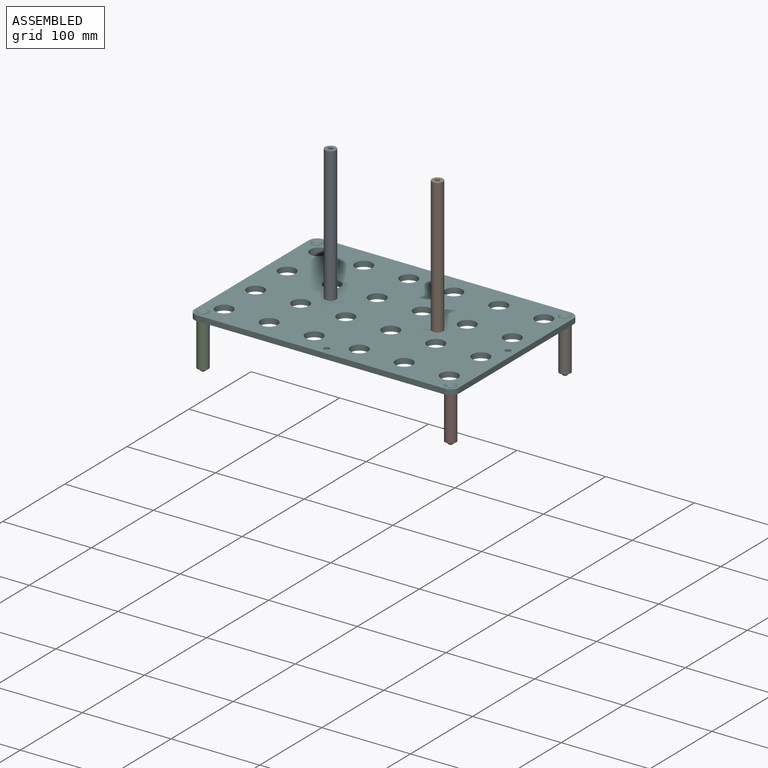
[diagram: assembled view]
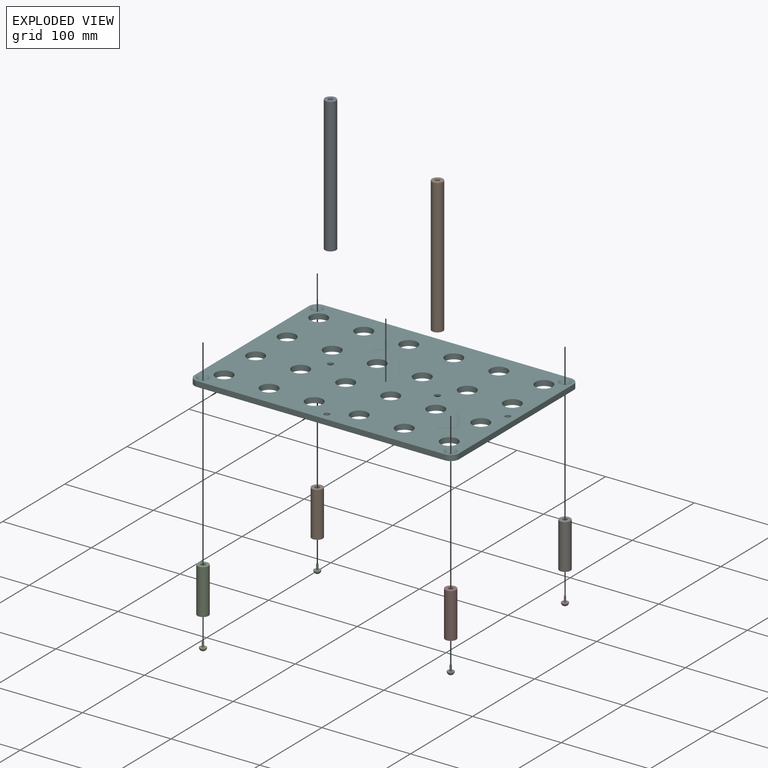
[diagram: exploded view]
GUIDED TOUR — MATED ASSEMBLY (Onshape document 4b744f1bc08e4623e3aabdac, AutoMate assembly 4b744f1bc08e4623e3aabdac_3c6e20d697e5b9ab1f1e1d80_13620ffebad03357eed60fb5_default)

This assembly has 11 components, labeled P0..P10 below (a component is one placed occurrence of a part; the same part can appear more than once), held together by 10 mates. A mate is a constraint between two components; its type names the relative motion it leaves free:
  FASTENED — locks the two components together rigidly (no relative motion).
Axis/direction vectors are unit vectors and 'through' points are millimeter coordinates, both in the assembly's world frame.

MATES
  1. FASTENED "Foot 2 to Base Plate": P5 <-> P9, direction (0.000, 0.000, -1.000) through (21.57, 147.60, -53.35) mm
  2. FASTENED "Foot 1 to Leg": P2 <-> P9, direction (0.000, 0.000, 1.000) through (21.57, 147.60, -104.15) mm
  3. FASTENED "Foot 3 to Base Plate": P7 <-> P5, direction (0.000, 0.000, 1.000) through (300.97, -36.55, -53.35) mm
  4. FASTENED "Foot 4 to Leg": P8 <-> P7, direction (0.000, 0.000, 1.000) through (300.97, -36.55, -104.15) mm
  5. FASTENED "Foot 2 to Leg": P10 <-> P4, direction (0.000, 0.000, -1.000) through (21.57, -36.55, -104.15) mm
  6. FASTENED "Foot 4 to Base Plate": P6 <-> P5, direction (0.000, 0.000, 1.000) through (300.97, 147.60, -53.35) mm
  7. FASTENED "Foot 1 to Base Plate": P10 <-> P5, direction (0.000, 0.000, 1.000) through (21.57, -36.55, -53.35) mm
  8. FASTENED "Foot 3 to Leg": P6 <-> P3, direction (0.000, 0.000, -1.000) through (300.97, 147.60, -104.15) mm
  9. FASTENED "Riser 1 to Base Plate": P0 <-> P5, direction (0.000, 0.000, -1.000) through (100.94, 55.52, -47.26) mm
  10. FASTENED "Riser 2 to Base Plate": P5 <-> P1, direction (0.000, 0.000, 1.000) through (221.59, 55.52, -47.26) mm

ASSEMBLY ORDER
  1. P1 — the base component [order verified]
  2. P0 [order verified]
  3. P5 [order verified]
  4. P9 [order verified]
  5. P6 [order verified]
  6. P7 [order verified]
  7. P10 [order verified]
  8. P3 [order verified]
  9. P2 [order verified]
  10. P8 [order verified]
  11. P4 [order verified]
Order-tag legend:
  [order verified] — this step's position reverses a verified removal order: the component was checked to insert without passing through the ones already placed.

Of the 11 components, 4 carry the full construction recipe — the FeatureScript program that regenerates the part's solid from scratch; the rest are supplied as boundary geometry only.
Each toured component is shown spotlighted twice — in the assembled view, then in the exploded view, where a leader line traces a displaced component back to its assembled socket (saturated green if recipe-attached, orange if geometry-only; every other component desaturated gray) — followed by its recipe or geometry summary and the mates that hold it.
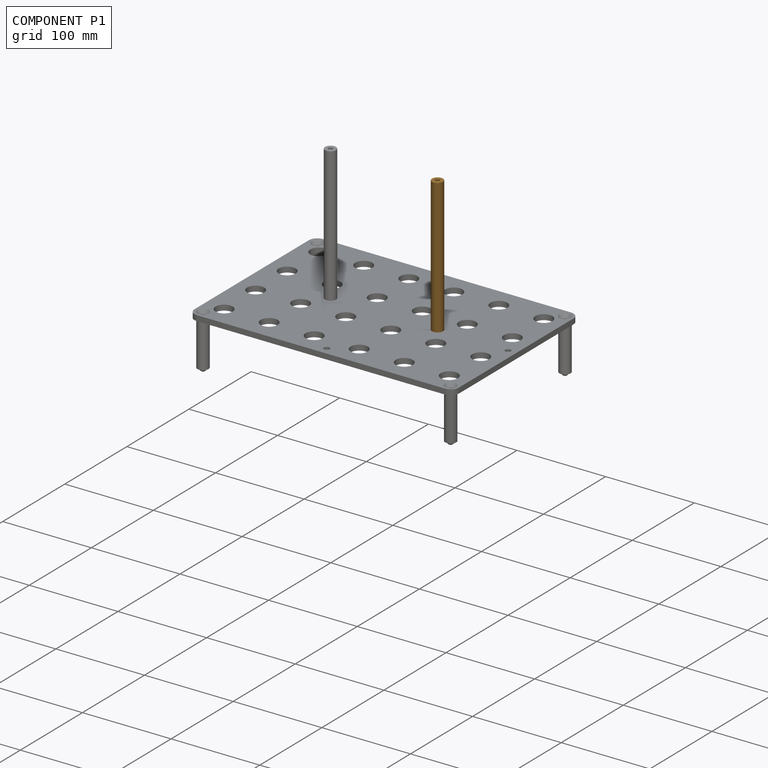
[diagram: component P1 — assembled]
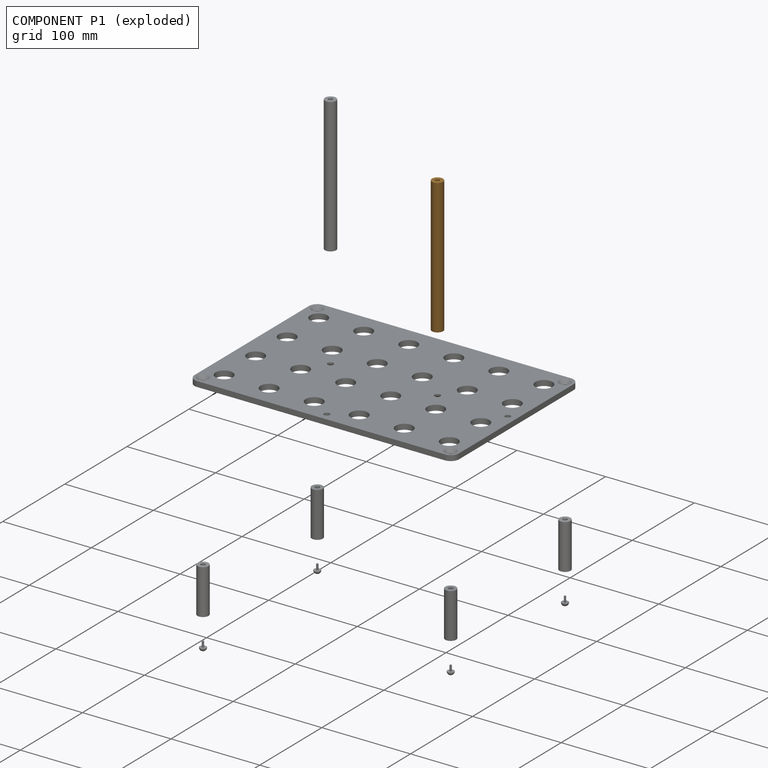
[diagram: component P1 — exploded]
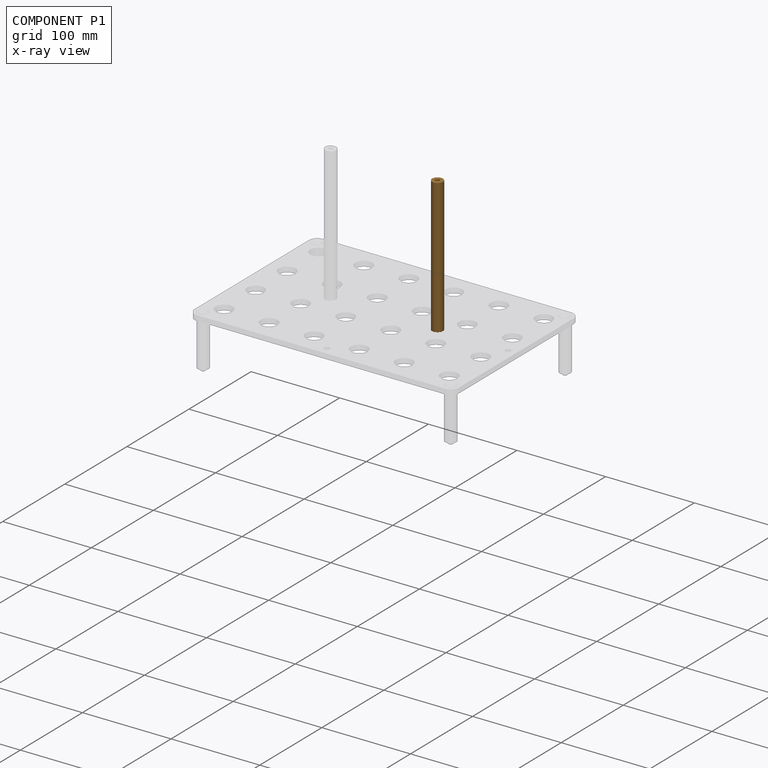
[diagram: component P1 — x-ray view]
COMPONENT P1 — geometry summary (no construction recipe available for this part):
  bounding box: 152.4 x 12.4 x 12.4 mm
  B-rep topology: 1 solid, 7 faces, 24 edges
  volume: 18000 mm^3 (76% of its bounding box)
  symmetry: 2-fold rotationally symmetric about the x axis; 2-fold rotationally symmetric about the y axis; revolution-symmetric about the z axis through its bounding-box center; mirror-symmetric across its x mid-plane, y mid-plane, z mid-plane
Held by: FASTENED mate "Riser 2 to Base Plate" to P5.
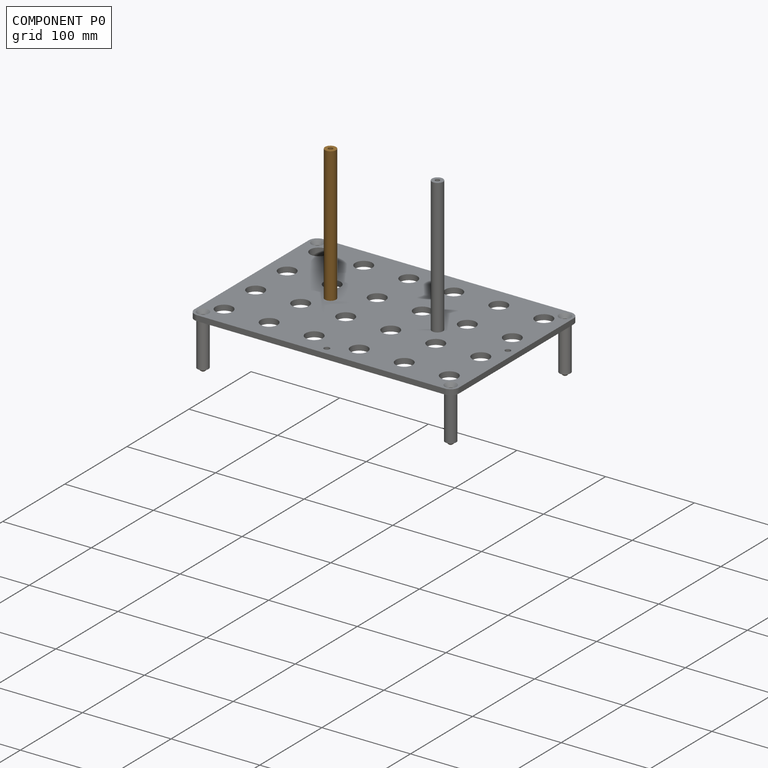
[diagram: component P0 — assembled]
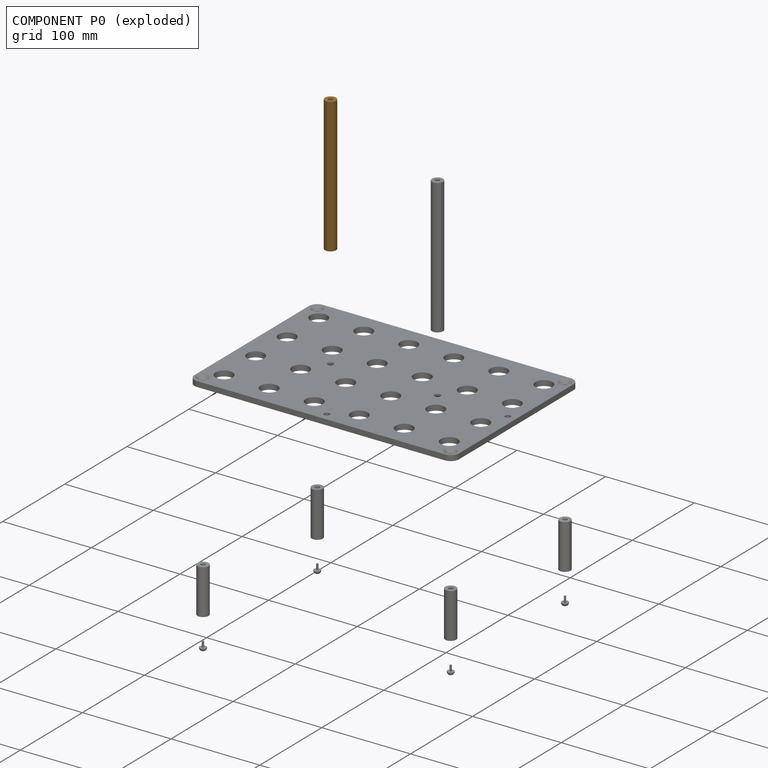
[diagram: component P0 — exploded]
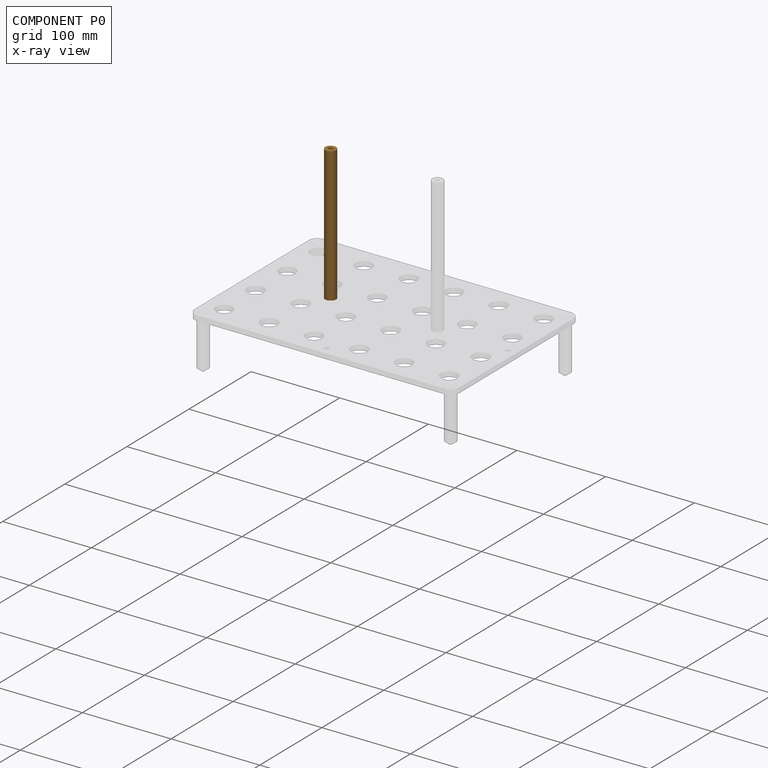
[diagram: component P0 — x-ray view]
COMPONENT P0 — geometry summary (no construction recipe available for this part):
  bounding box: 152.4 x 12.4 x 12.4 mm
  B-rep topology: 1 solid, 7 faces, 24 edges
  volume: 18000 mm^3 (76% of its bounding box)
  symmetry: 2-fold rotationally symmetric about the x axis; 2-fold rotationally symmetric about the y axis; revolution-symmetric about the z axis through its bounding-box center; mirror-symmetric across its x mid-plane, y mid-plane, z mid-plane
Held by: FASTENED mate "Riser 1 to Base Plate" to P5.
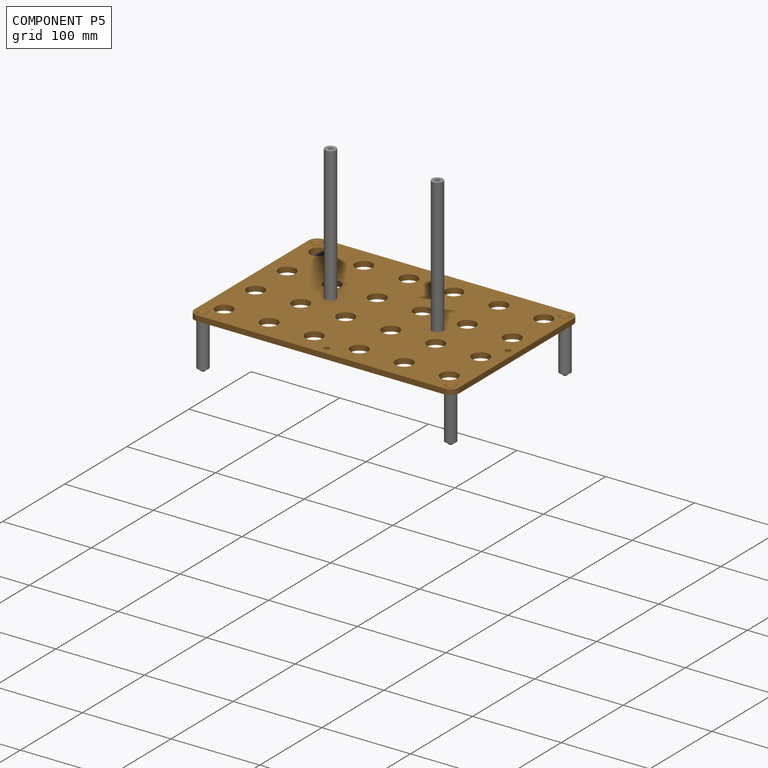
[diagram: component P5 — assembled]
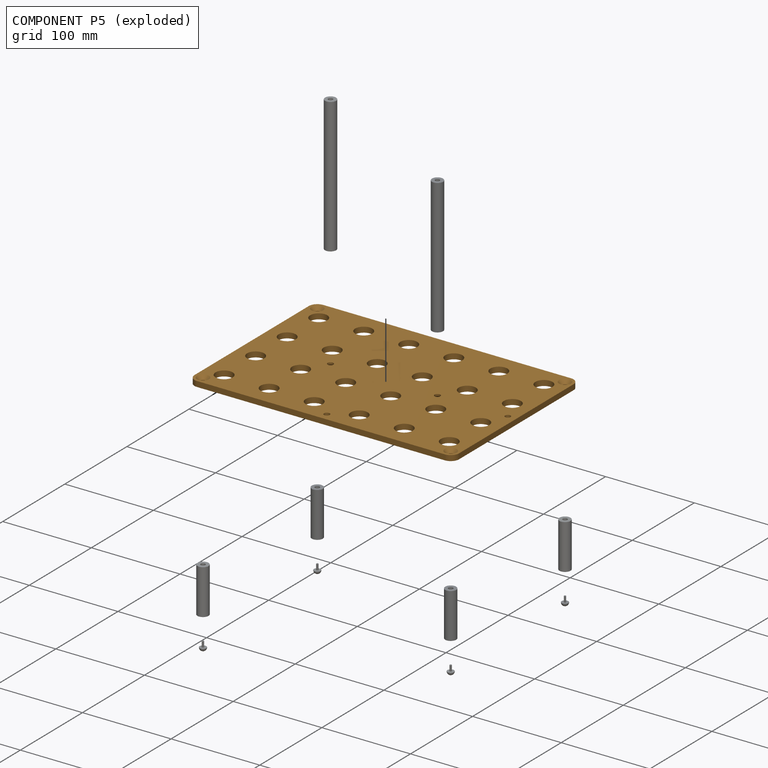
[diagram: component P5 — exploded]
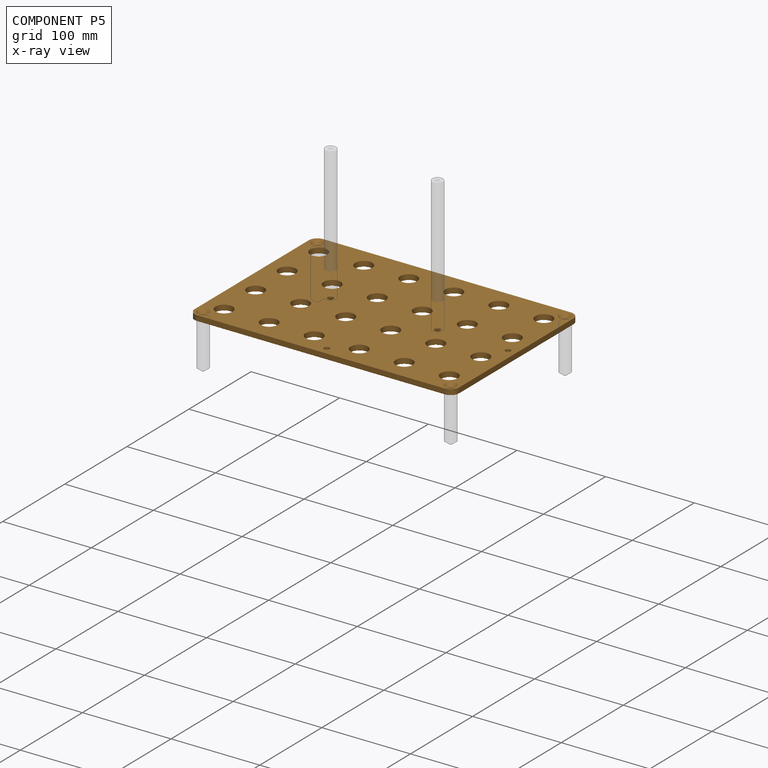
[diagram: component P5 — x-ray view]
COMPONENT P5 — geometry summary (no construction recipe available for this part):
  bounding box: 298.5 x 203.2 x 6.1 mm
  B-rep topology: 1 solid, 48 faces, 268 edges
  volume: 323638 mm^3 (88% of its bounding box)
  symmetry: 2-fold rotationally symmetric about the x axis; 2-fold rotationally symmetric about the y axis; 2-fold rotationally symmetric about the z axis; mirror-symmetric across its x mid-plane, y mid-plane, z mid-plane
Held by: FASTENED mate "Foot 2 to Base Plate" to P9; FASTENED mate "Foot 3 to Base Plate" to P7; FASTENED mate "Foot 4 to Base Plate" to P6; FASTENED mate "Foot 1 to Base Plate" to P10; FASTENED mate "Riser 1 to Base Plate" to P0; FASTENED mate "Riser 2 to Base Plate" to P1.
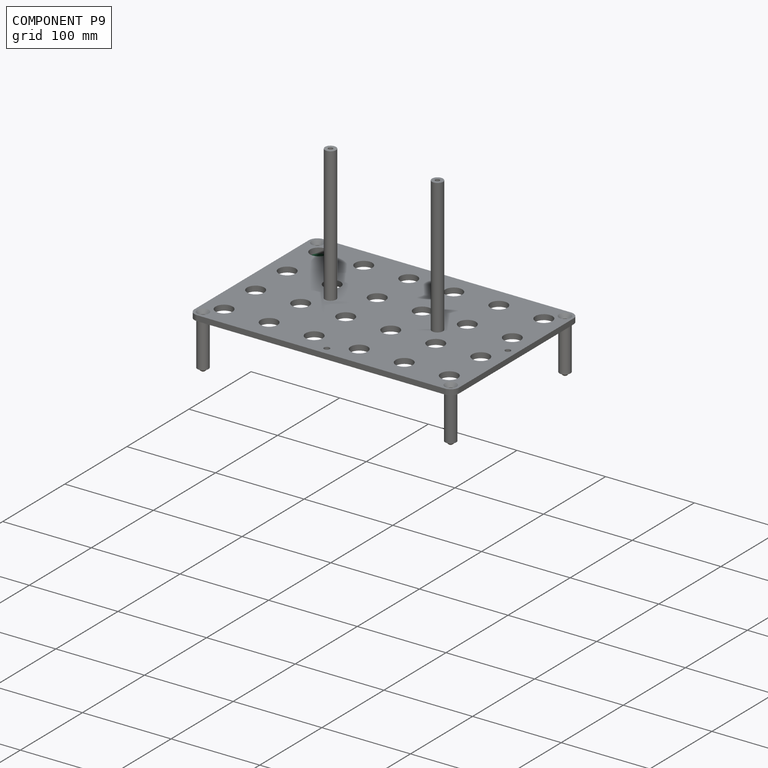
[diagram: component P9 — assembled]
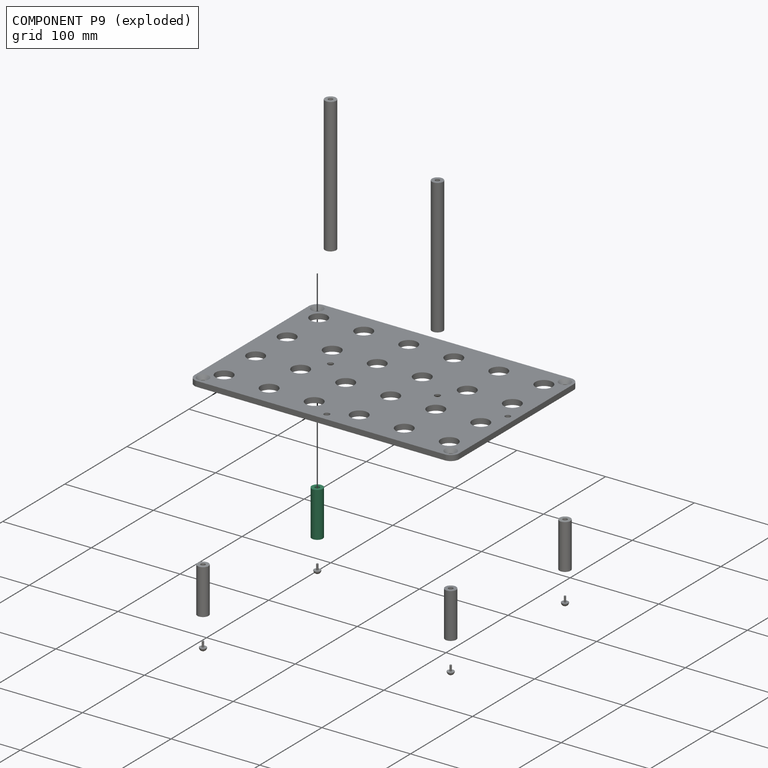
[diagram: component P9 — exploded]
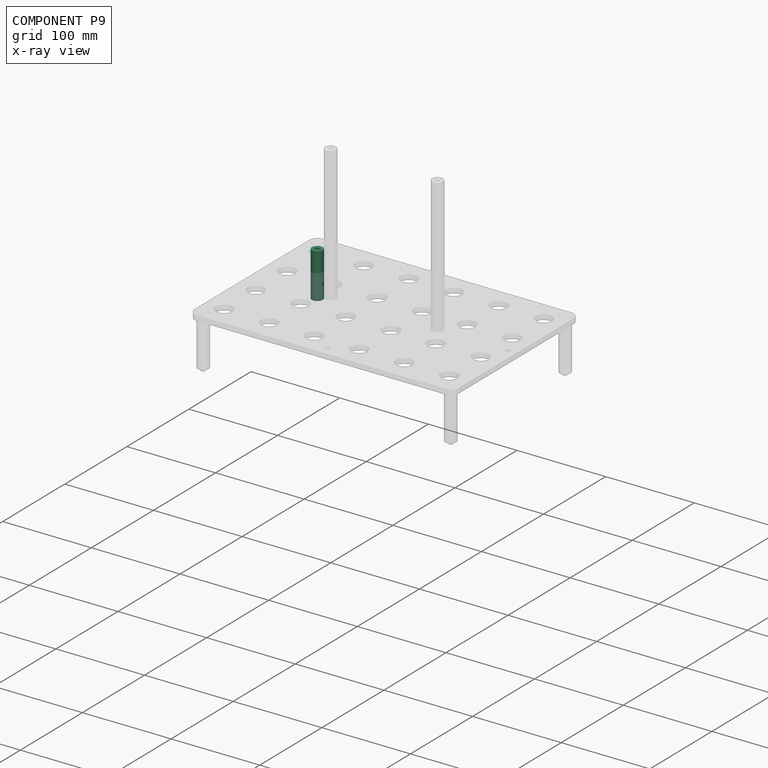
[diagram: component P9 — x-ray view]
COMPONENT P9 — same part as P6 (CADFS 00590793); its construction recipe is shown at P6.
Held by: FASTENED mate "Foot 2 to Base Plate" to P5; FASTENED mate "Foot 1 to Leg" to P2.
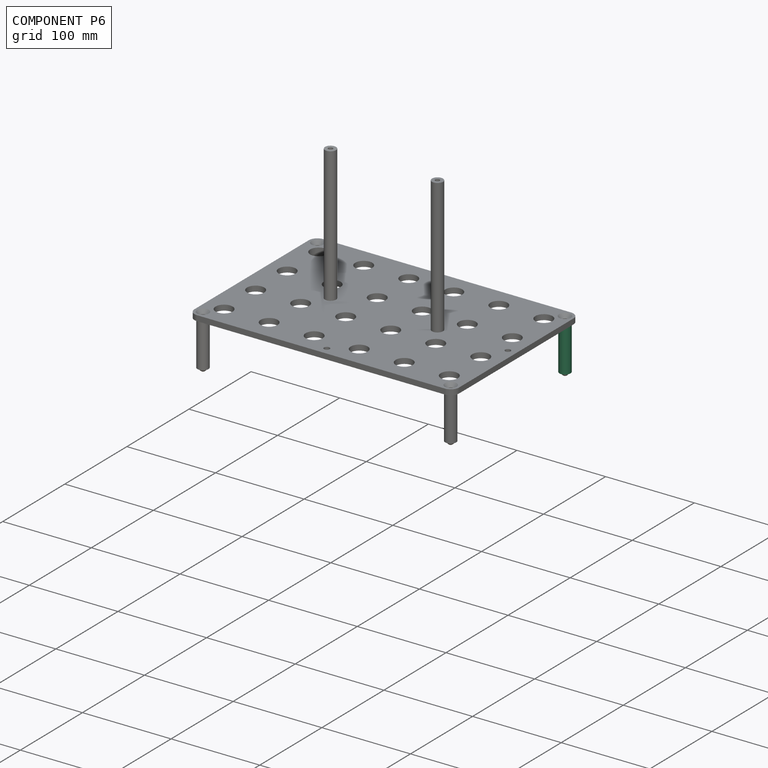
[diagram: component P6 — assembled]
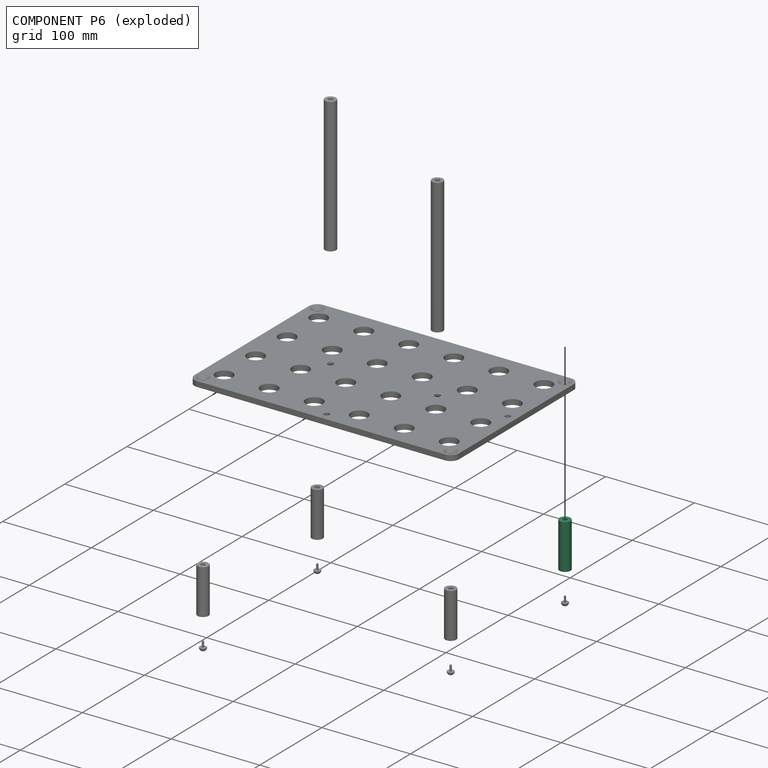
[diagram: component P6 — exploded]
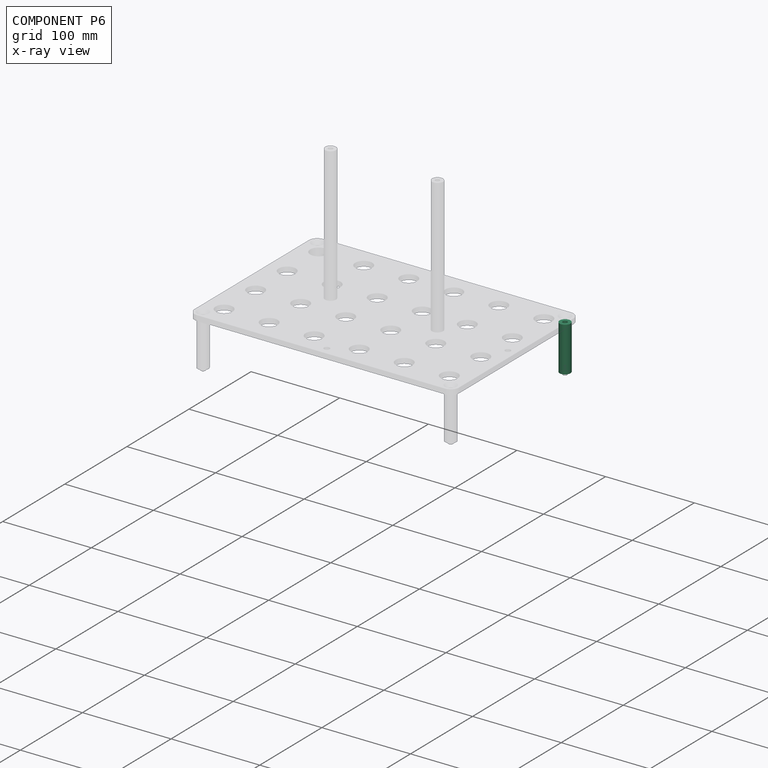
[diagram: component P6 — x-ray view]
COMPONENT P6 — recipe-attached (CADFS 00590793, mesh-verified: the recipe's output STEP matches this component's geometry to below the mesh-comparison resolution (tessellation chordal tolerance ~0.0806 mm)).
Held by: FASTENED mate "Foot 4 to Base Plate" to P5; FASTENED mate "Foot 3 to Leg" to P3.
Construction recipe (FeatureScript — the CAD program that rebuilds this solid; sketch coordinates are in the units given by the * unit suffixes, e.g. mm):

FeatureScript 1511;
import(path : "onshape/std/geometry.fs", version : "1511.0");
import(path : "onshape/std/common.fs", version : "1511.0");
const mm = millimeter;
const VERTEX = EntityType.VERTEX;
const EDGE = EntityType.EDGE;
const FACE = EntityType.FACE;
const BODY = EntityType.BODY;
function v(x, y){return vector(x, y);}
function OD(order){return orderDisambiguation(order);}
function OSD(set){return originalSetDisambiguation(set);}
function TD(topology){return topologyDisambiguation(topology);}
function TDD(query){return trueDependencyDisambiguation(query);}
function sQuery(a, b, c) {return sketchEntityQuery(a, b, c);}

annotation { "Feature Type Name" : "Feature", "Feature Type Description" : "" }
export const myFeature = defineFeature(function(context is Context, id is Id, definition is map)
    precondition{}
    {
        {
            var Q0;
            Q0=qCreatedBy(makeId("Top.planeOp"),FACE);
            var sketch = newSketch(context, id + "F0", { "sketchPlane" : qUnion([Q0])});
            skCircle(sketch, "E0", {"center": v(0, 0) * mm, "radius": 6.22 * mm});
            skSolve(sketch);
        }
        {
            var Q0;
            Q0=makeQuery(id+"F0.imprint","IMPRINT",FACE,{"disambiguationData":[TD([[makeQuery(id+"F0.imprint","IMPRINT",EDGE,{"derivedFrom":sQuery(id+"F0.wireOp",EDGE,"E0")}),1.0]])]});
            extrude(context, id + "F1", {"entities" : qUnion([Q0]), "oppositeDirection" : true, "depth" : 50.8 * mm});
        }
        {
            var Q0;
            Q0=makeQuery(id+"F1.opExtrude","CAP_FACE",FACE,{"disambiguationData":[OSD([sQuery(id+"F0.wireOp",EDGE,"E0")])],"isStart":true});
            var sketch = newSketch(context, id + "F2", { "sketchPlane" : qUnion([Q0])});
            skPoint(sketch, "E1", {"position": v(0, 0) * mm});
            skSolve(sketch);
        }
        {
            var Q0;
            Q0=sQuery(id+"F2.wireOp",VERTEX,"E1");
            var Q1;
            Q1=makeQuery(id+"F1.opExtrude","SWEPT_BODY",BODY,{"disambiguationData":[OSD([sQuery(id+"F0.wireOp",EDGE,"E0")])]});
            hole(context, id + "F3", {"style" : HoleStyle.SIMPLE, "endStyle" : HoleEndStyle.BLIND, "standardTappedOrClearance" : lookupTablePath({ "standard" : "ANSI", "engagement" : "75%", "pitch" : "20 tpi", "size" : "1/4", "type" : "Tapped" }), "standardBlindInLast" : lookupTablePath({ "standard" : "ANSI", "engagement" : "75%", "pitch" : "20 tpi", "size" : "1/4", "type" : "Tapped" }), "holeDiameter" : 5.1 * mm, "showTappedDepth" : true, "holeDepth" : 12.7 * mm, "isTappedThrough" : true, "tappedDepth" : 8.9 * mm, "tapClearance" : 3, "startFromSketch" : true, "locations" : qUnion([Q0]), "scope" : qUnion([Q1]), "majorDiameter" : 6.35 * mm});
        }
        {
            var Q0;
            Q0=makeQuery(id+"F1.opExtrude","CAP_FACE",FACE,{"disambiguationData":[OSD([sQuery(id+"F0.wireOp",EDGE,"E0")])],"isStart":false});
            var sketch = newSketch(context, id + "F4", { "sketchPlane" : qUnion([Q0])});
            skPoint(sketch, "E2", {"position": v(0, 0) * mm});
            skSolve(sketch);
        }
        {
            var Q0;
            Q0=sQuery(id+"F4.wireOp",VERTEX,"E2");
            var Q1;
            Q1=makeQuery(id+"F1.opExtrude","SWEPT_BODY",BODY,{"disambiguationData":[OSD([sQuery(id+"F0.wireOp",EDGE,"E0")])]});
            hole(context, id + "F5", {"style" : HoleStyle.SIMPLE, "endStyle" : HoleEndStyle.BLIND, "standardTappedOrClearance" : lookupTablePath({ "standard" : "ANSI", "engagement" : "75%", "pitch" : "32 tpi", "size" : "#6", "type" : "Tapped" }), "standardBlindInLast" : lookupTablePath({ "standard" : "ANSI", "engagement" : "75%", "pitch" : "32 tpi", "size" : "#6", "type" : "Tapped" }), "holeDiameter" : 2.7 * mm, "showTappedDepth" : true, "holeDepth" : 12.7 * mm, "isTappedThrough" : true, "tappedDepth" : 10.32 * mm, "tapClearance" : 3, "startFromSketch" : true, "locations" : qUnion([Q0]), "scope" : qUnion([Q1]), "majorDiameter" : 3.5 * mm});
        }
    });
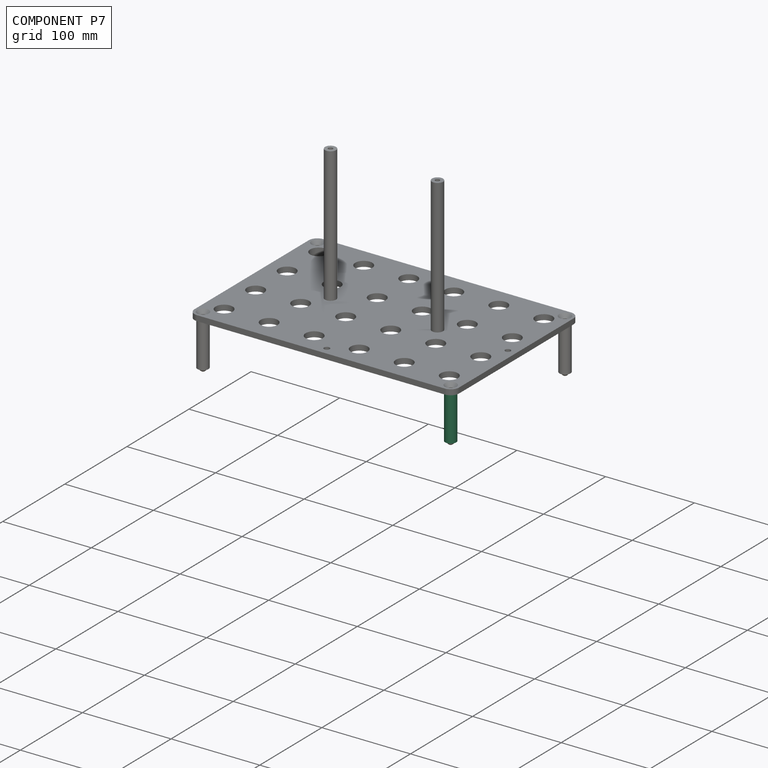
[diagram: component P7 — assembled]
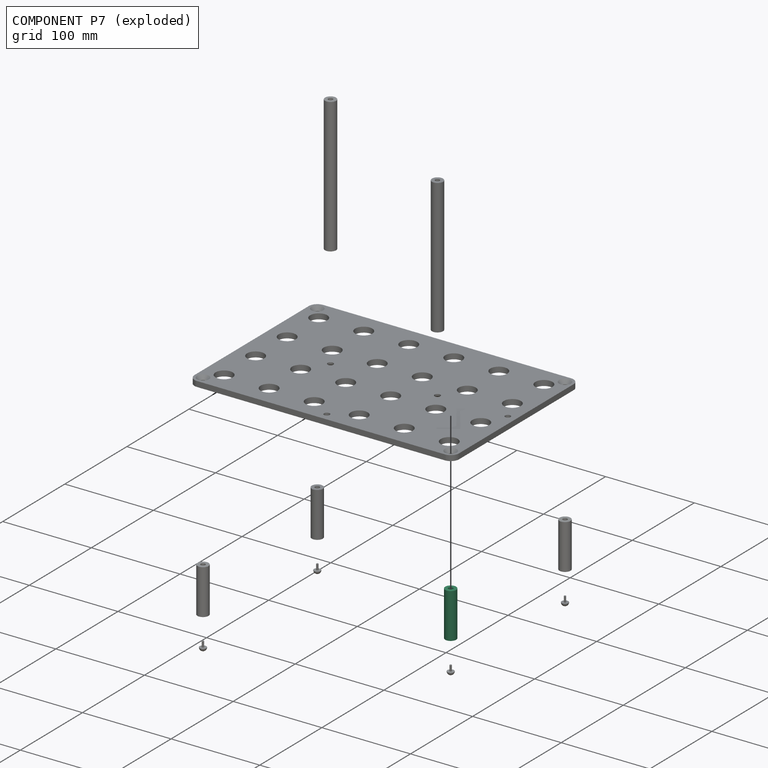
[diagram: component P7 — exploded]
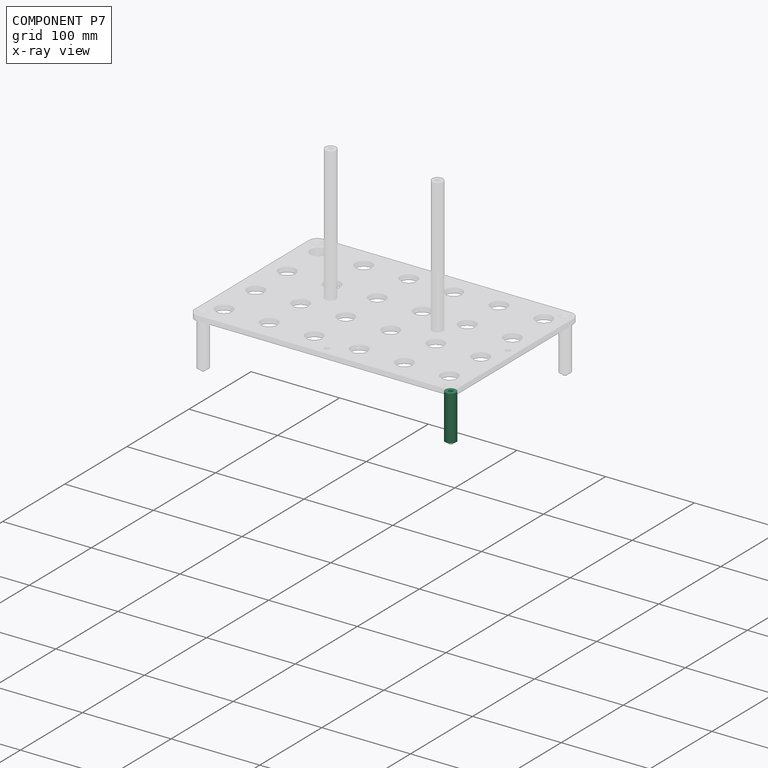
[diagram: component P7 — x-ray view]
COMPONENT P7 — same part as P6 (CADFS 00590793); its construction recipe is shown at P6.
Held by: FASTENED mate "Foot 3 to Base Plate" to P5; FASTENED mate "Foot 4 to Leg" to P8.
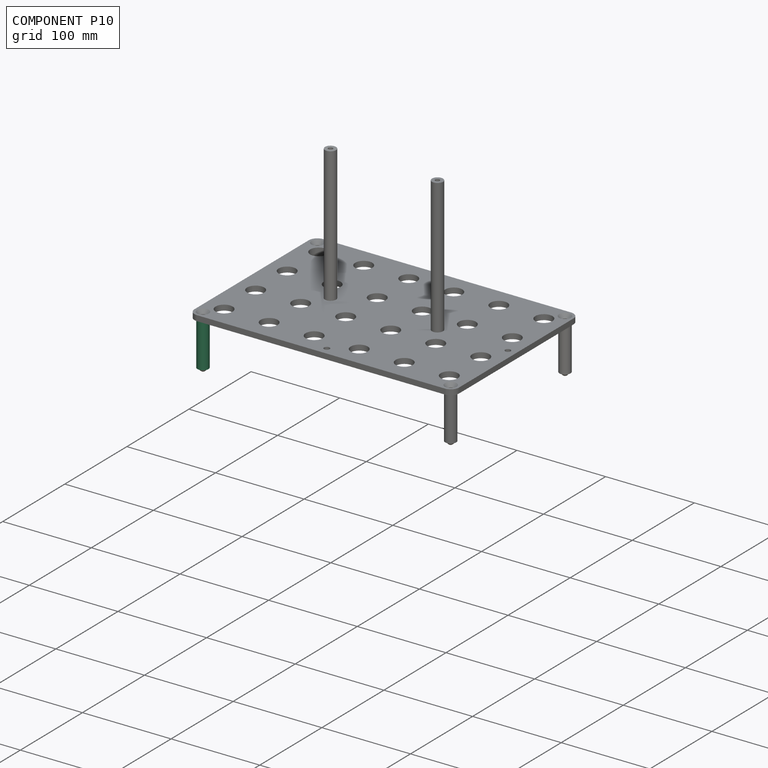
[diagram: component P10 — assembled]
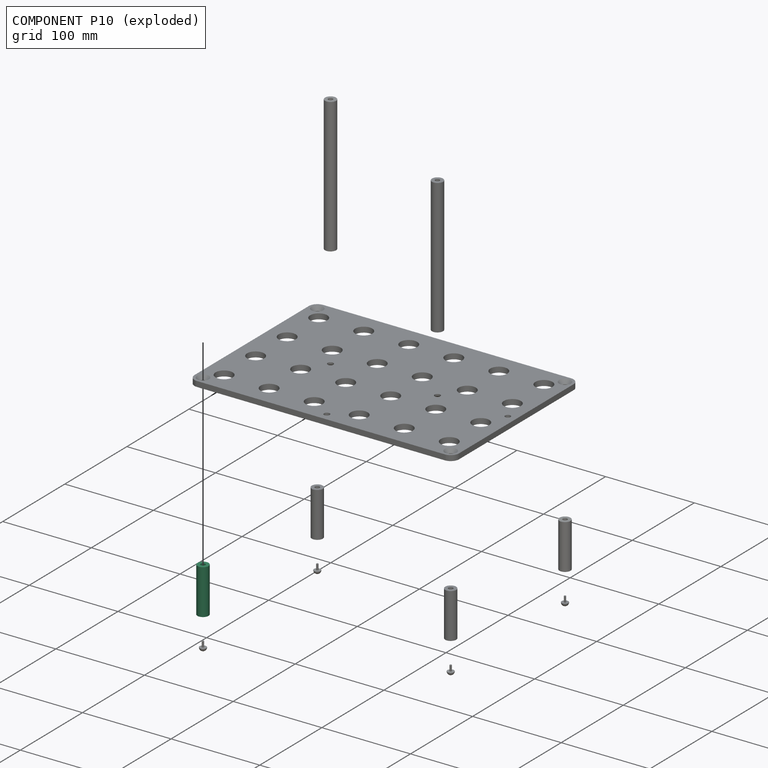
[diagram: component P10 — exploded]
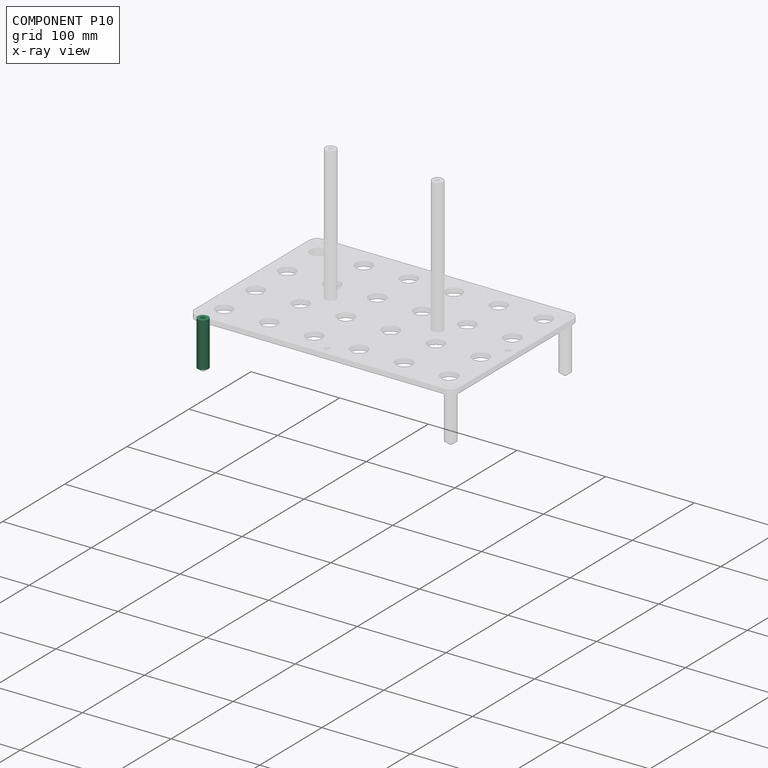
[diagram: component P10 — x-ray view]
COMPONENT P10 — same part as P6 (CADFS 00590793); its construction recipe is shown at P6.
Held by: FASTENED mate "Foot 2 to Leg" to P4; FASTENED mate "Foot 1 to Base Plate" to P5.
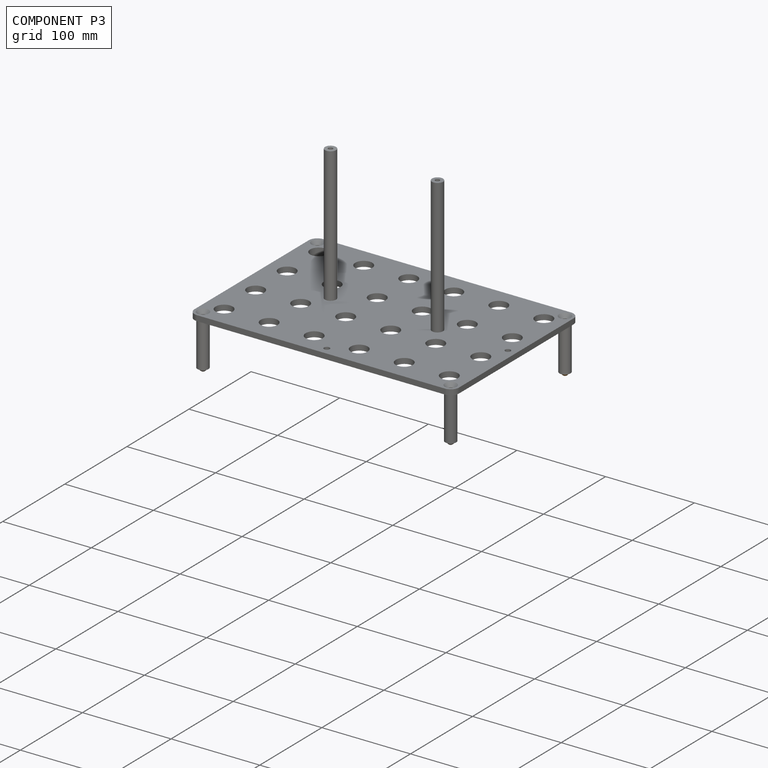
[diagram: component P3 — assembled]
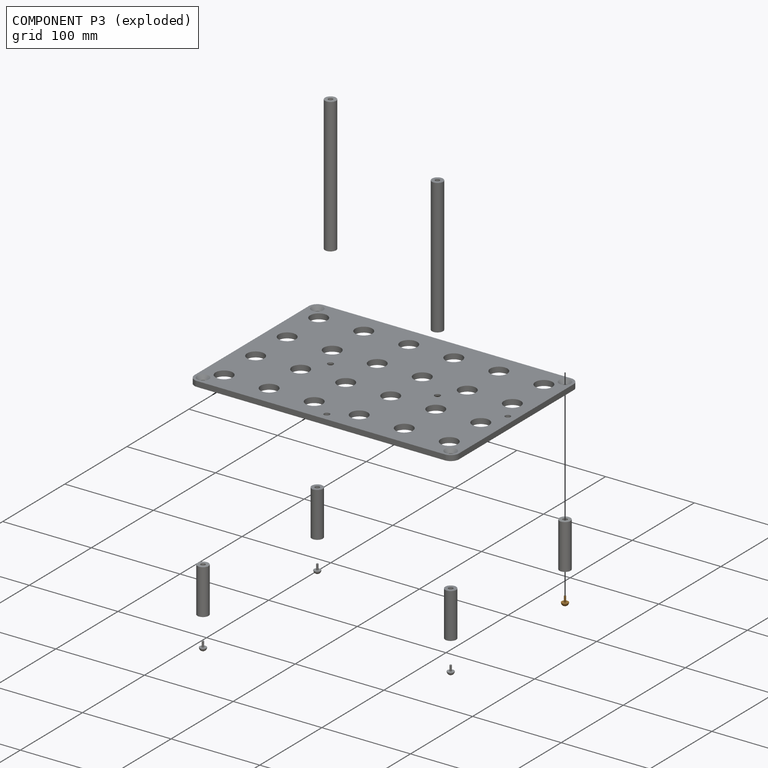
[diagram: component P3 — exploded]
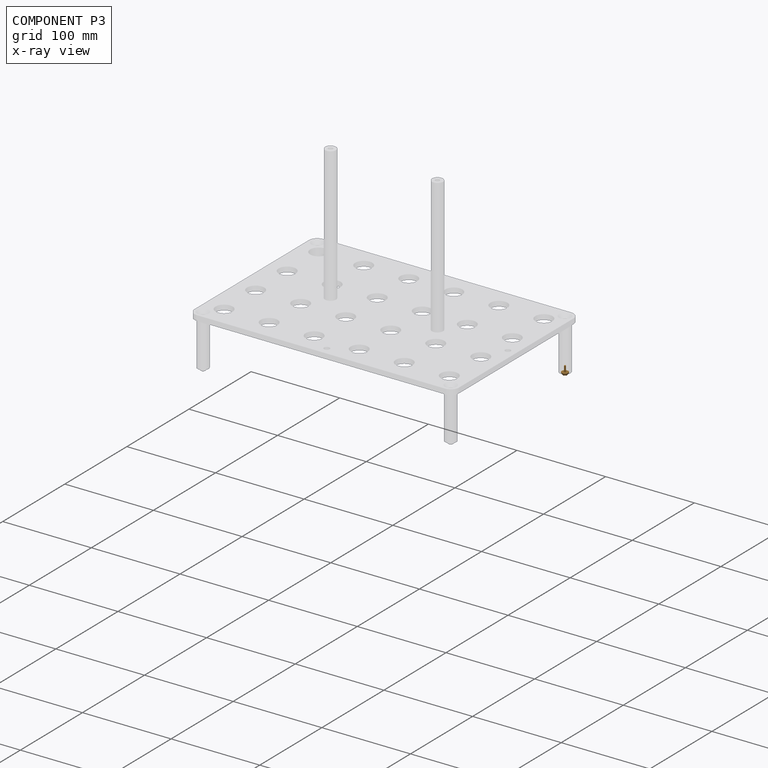
[diagram: component P3 — x-ray view]
COMPONENT P3 — geometry summary (no construction recipe available for this part):
  bounding box: 10.2 x 7.6 x 7.6 mm
  B-rep topology: 1 solid, 4 faces, 11 edges
  volume: 140 mm^3 (24% of its bounding box)
  symmetry: revolution-symmetric about the z axis through its bounding-box center; mirror-symmetric across its x mid-plane, y mid-plane
Held by: FASTENED mate "Foot 3 to Leg" to P6.
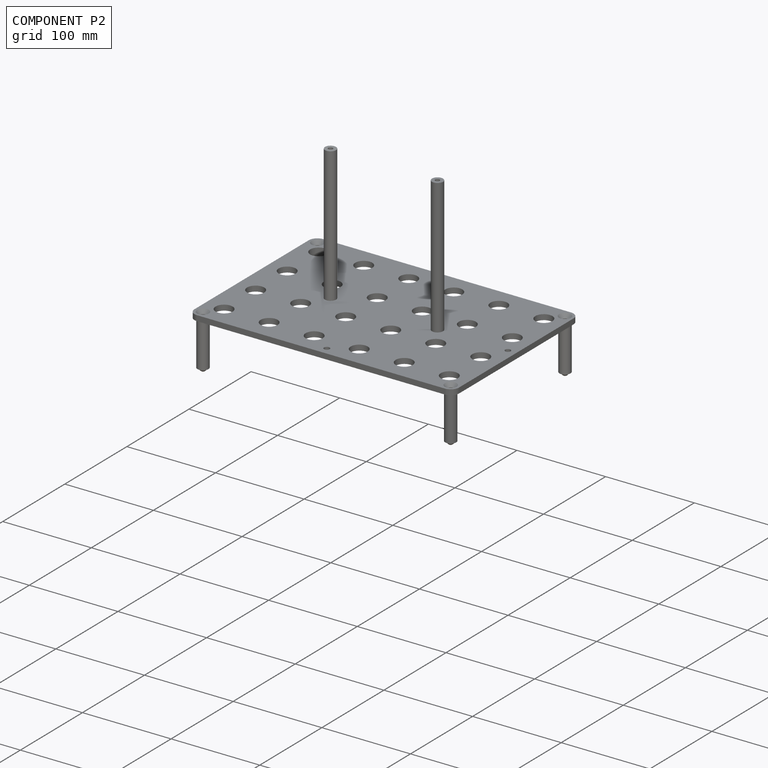
[diagram: component P2 — assembled]
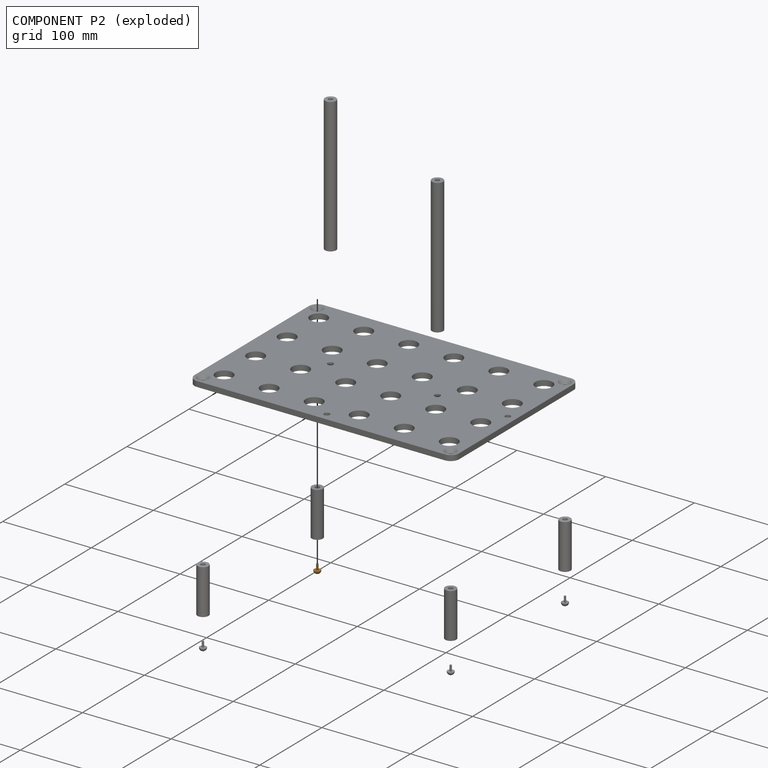
[diagram: component P2 — exploded]
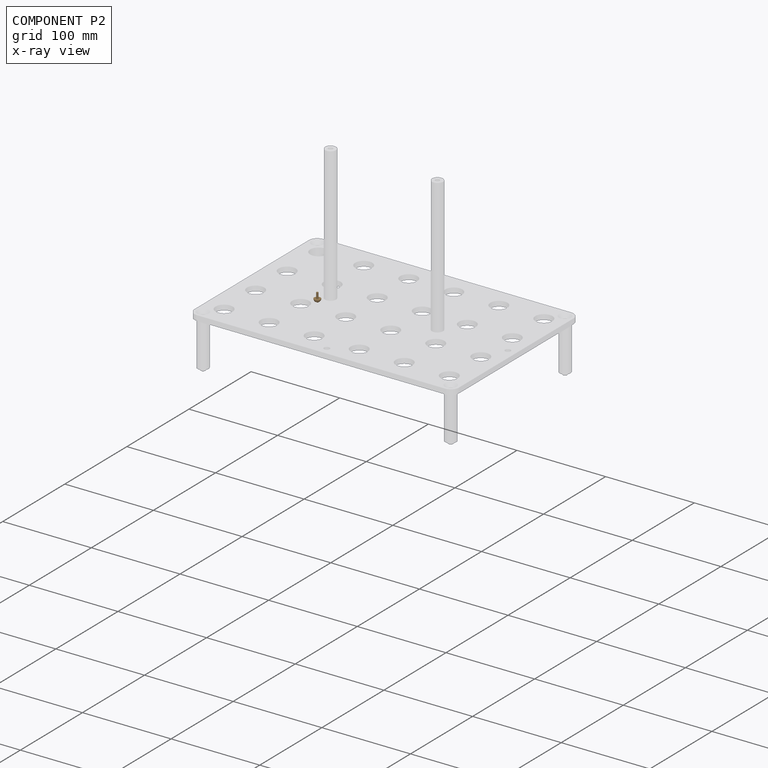
[diagram: component P2 — x-ray view]
COMPONENT P2 — geometry summary (no construction recipe available for this part):
  bounding box: 10.2 x 7.6 x 7.6 mm
  B-rep topology: 1 solid, 4 faces, 11 edges
  volume: 140 mm^3 (24% of its bounding box)
  symmetry: revolution-symmetric about the z axis through its bounding-box center; mirror-symmetric across its x mid-plane, y mid-plane
Held by: FASTENED mate "Foot 1 to Leg" to P9.
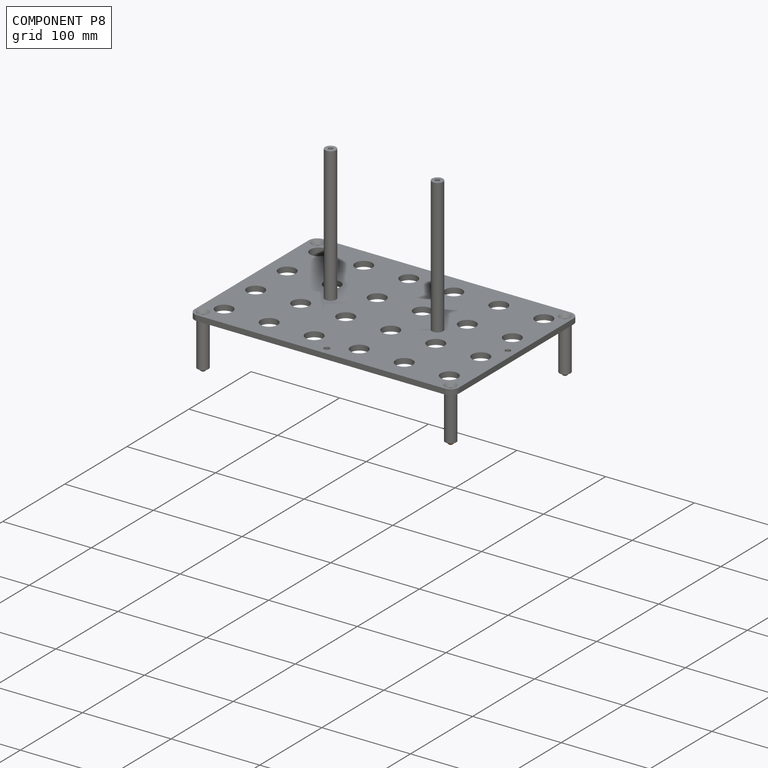
[diagram: component P8 — assembled]
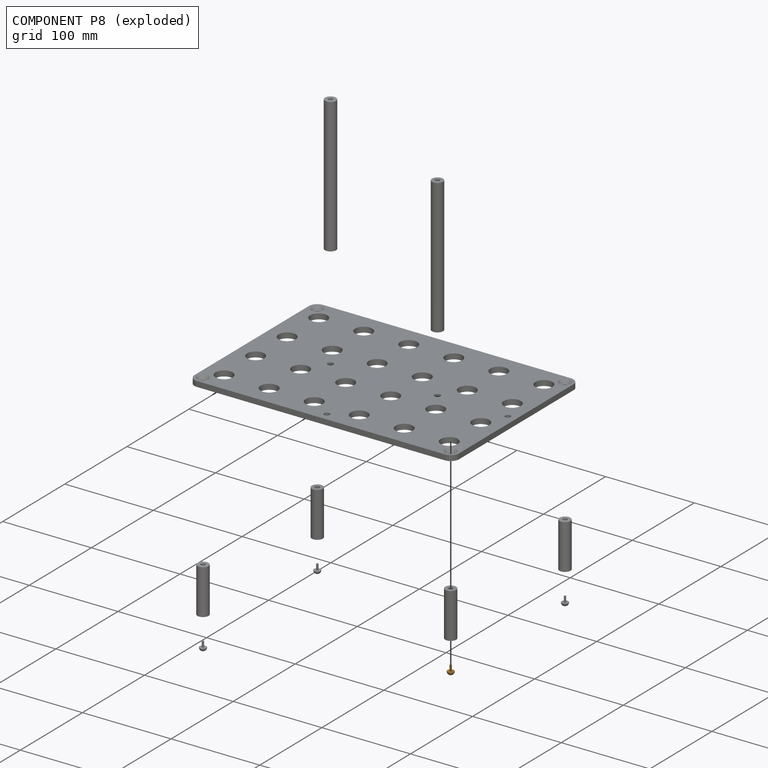
[diagram: component P8 — exploded]
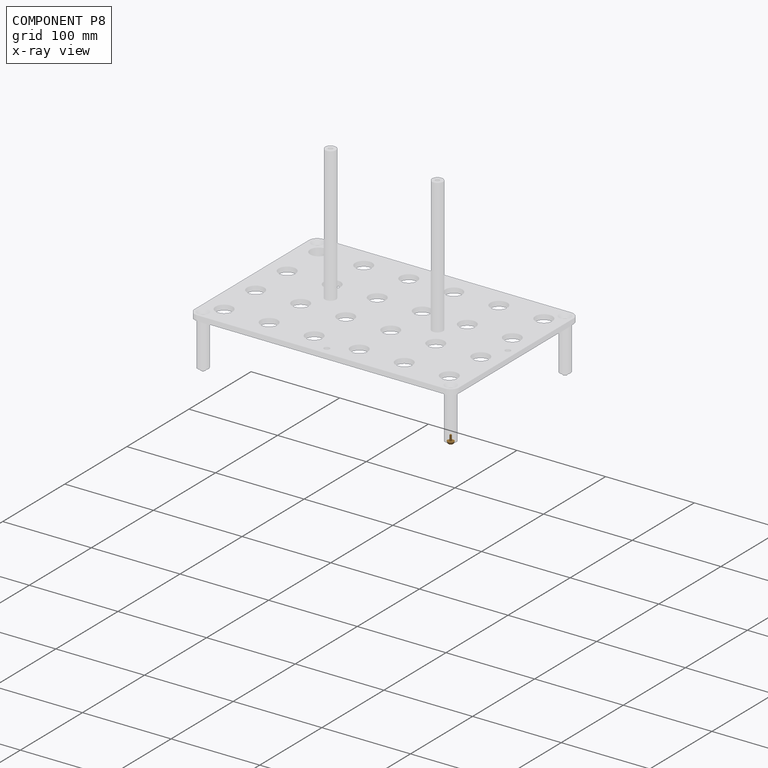
[diagram: component P8 — x-ray view]
COMPONENT P8 — geometry summary (no construction recipe available for this part):
  bounding box: 10.2 x 7.6 x 7.6 mm
  B-rep topology: 1 solid, 4 faces, 11 edges
  volume: 140 mm^3 (24% of its bounding box)
  symmetry: revolution-symmetric about the z axis through its bounding-box center; mirror-symmetric across its x mid-plane, y mid-plane
Held by: FASTENED mate "Foot 4 to Leg" to P7.
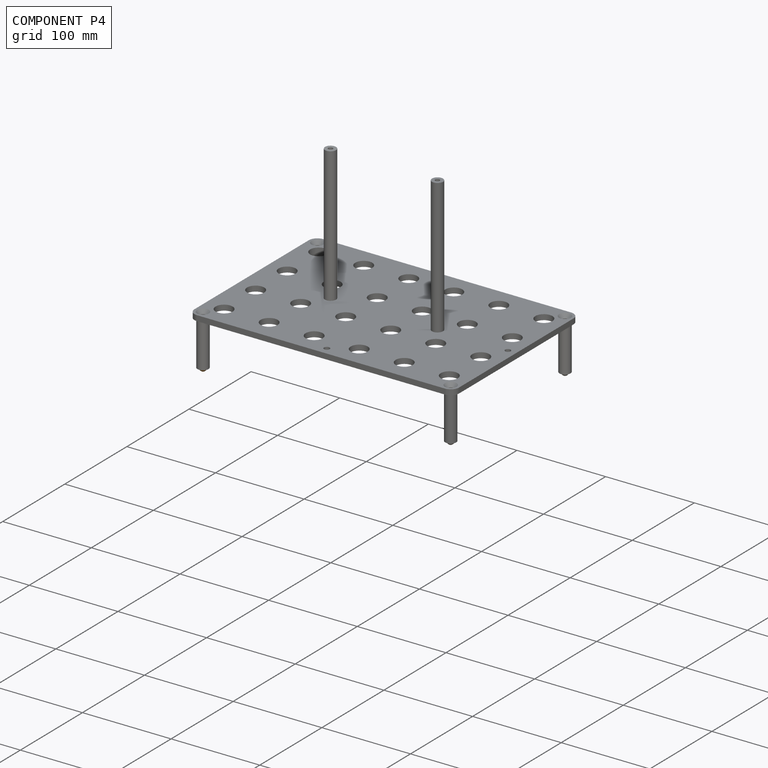
[diagram: component P4 — assembled]
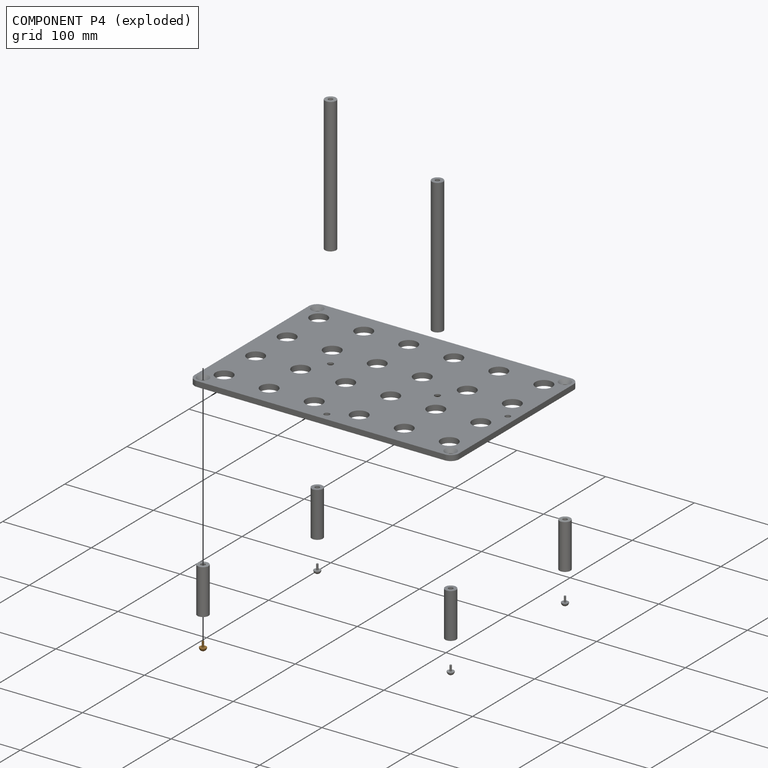
[diagram: component P4 — exploded]
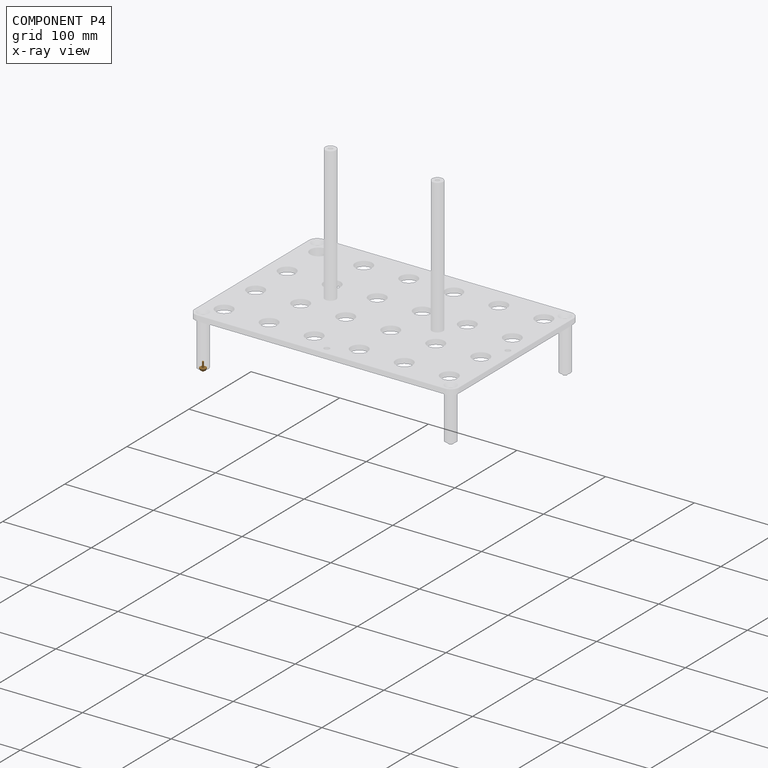
[diagram: component P4 — x-ray view]
COMPONENT P4 — geometry summary (no construction recipe available for this part):
  bounding box: 10.2 x 7.6 x 7.6 mm
  B-rep topology: 1 solid, 4 faces, 11 edges
  volume: 140 mm^3 (24% of its bounding box)
  symmetry: revolution-symmetric about the z axis through its bounding-box center; mirror-symmetric across its x mid-plane, y mid-plane
Held by: FASTENED mate "Foot 2 to Leg" to P10.
PROVENANCE & LICENSES
Assembly (occurrences, transforms, mates, per-part STEP geometry): AutoMate dataset, Zenodo record 7776208, CC0.
Construction recipes: CADFS (HuggingFace VladPyatov/CADFS, CC-BY-4.0, layered over the ABC dataset), FeatureScript reconstruction programs keyed by ABC model id.
Join: ABC meta listings map ABC model id -> Onshape documentId; within a shared document, parts are matched by geometric signature (bounding-box dims + volume at 0.1% relative tolerance, exact B-rep face/solid counts).
Verification: 4 of this assembly's 11 components carry a recipe attachment, and every attachment is mesh-verified: the CADFS STEP and the AutoMate member STEP were compared as meshes in their shared local frame (symmetric sampled-point-to-mesh distance); worst across the 4 attachments: below the mesh-comparison resolution (tessellation chordal tolerance ~0.0806 mm) on a 54 mm part.
Renders: orthographic iso camera (az 35 / el 25); the floor grid conveys scale (grid pitch printed in each image; no ruler). In the exploded view each component is displaced by its stored offset vector: the offsets alone carry the explosion direction (mate normal/axis signs are not orientation cues and do not encode it), and separation distances are assigned per mate-chain, not proportionally to assembly-order depth.
